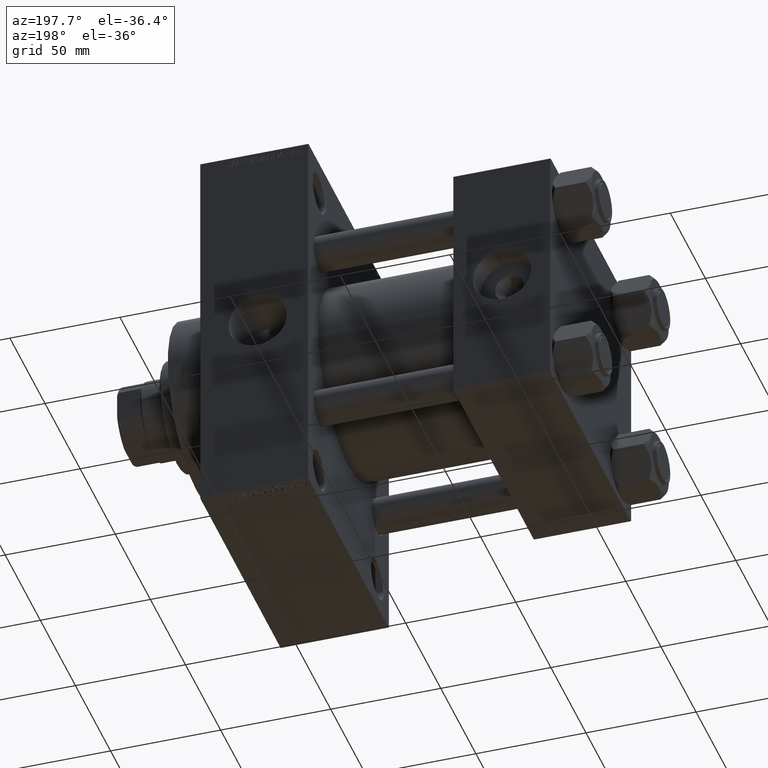
[diagram: clean part render]
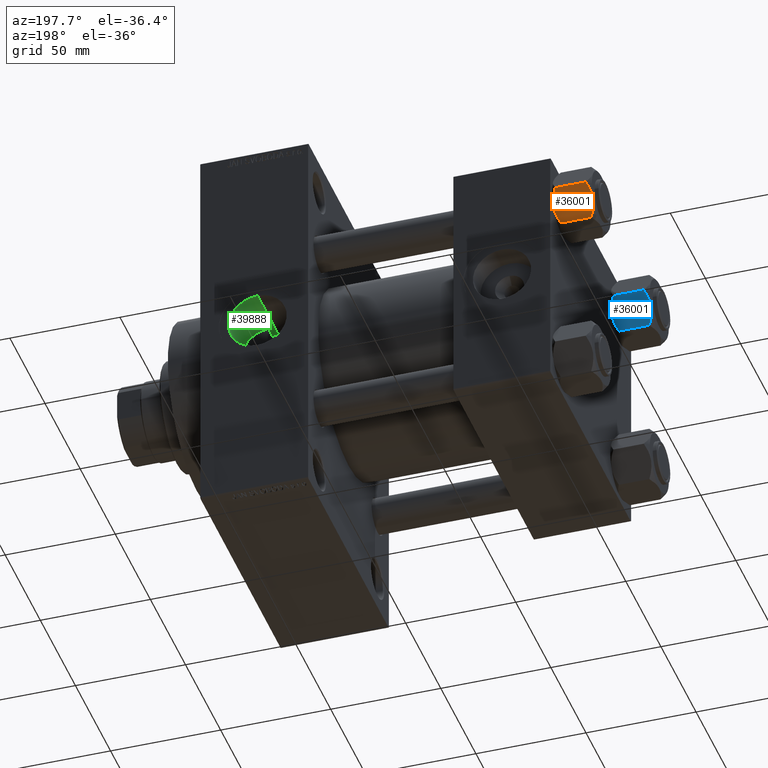
[diagram: same view with three faces highlighted in distinct colors, each labeled with its STEP entity id]
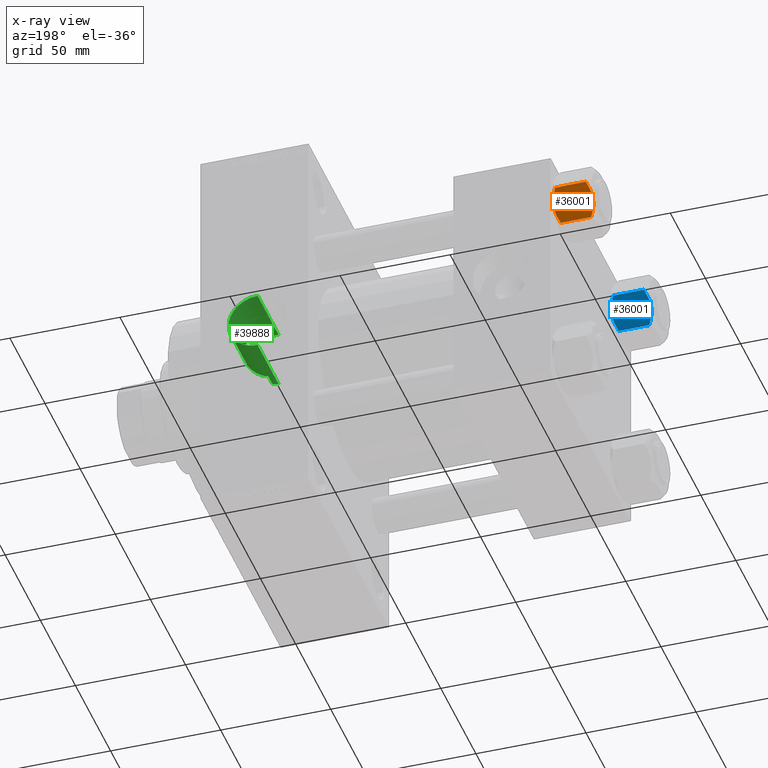
[diagram: x-ray of the same camera — body ghosted, the three highlighted faces saturated]
A machine part, auxiliary view with three faces highlighted in distinct colors.
The next image is the same camera in x-ray (body ghosted, the three faces saturated) — at least one of them is partly hidden behind the body in this view.
Their STEP definitions:

[orange] entity #36001 — the highlighted planar face has unit normal (-0, -0.866, 0.5).
#129 = ORIENTED_EDGE ( 'NONE', *, *, #29640, .F. ) ;
#245 = LINE ( 'NONE', #7324, #10017 ) ;
#318 = CARTESIAN_POINT ( 'NONE',  ( 8.506059550806622127, 12.32170630002230283, -1.434462921875002683 ) ) ;
#373 = ORIENTED_EDGE ( 'NONE', *, *, #44246, .F. ) ;
#957 = CARTESIAN_POINT ( 'NONE',  ( 12.04818928091285812, 6.186557640478062225, 2.165016213181991667E-15 ) ) ;
#2048 = DIRECTION ( 'NONE',  ( -0.4999999999999999445, 0.8660254037844387076, 0.000000000000000000 ) ) ;
#2084 = CARTESIAN_POINT ( 'NONE',  ( 11.71500000000000519, 6.763658403556469523, 0.000000000000000000 ) ) ;
#3810 = CARTESIAN_POINT ( 'NONE',  ( 12.37702203890362895, 5.617002596445055396, -18.00000000000001066 ) ) ;
#3815 = B_SPLINE_CURVE_WITH_KNOTS ( 'NONE', 3,
 ( #41325, #3810, #26470, #10870, #41818, #34039, #41574, #34529 ),
 .UNSPECIFIED., .F., .F.,
 ( 4, 2, 2, 4 ),
 ( 0.007890825462474420487, 0.01181022244528553804, 0.01376992093669109421, 0.01572961942809665212 ),
 .UNSPECIFIED. ) ;
#4880 = VECTOR ( 'NONE', #22887, 1000.000000000000000 ) ;
#4985 = CARTESIAN_POINT ( 'NONE',  ( 15.52647173767732980, 0.1619957022865022300, -2.000000000000000000 ) ) ;
#5204 = VERTEX_POINT ( 'NONE', #6799 ) ;
#5675 = VECTOR ( 'NONE', #25960, 1000.000000000000000 ) ;
#6034 = VERTEX_POINT ( 'NONE', #12920 ) ;
#6207 = B_SPLINE_CURVE_WITH_KNOTS ( 'NONE', 3,
 ( #12887, #43584, #9101, #24466, #34827, #318, #15686, #46380 ),
 .UNSPECIFIED., .F., .F.,
 ( 4, 2, 2, 4 ),
 ( 0.007890825462474437835, 0.01181022244528555538, 0.01376992093669111156, 0.01572961942809666946 ),
 .UNSPECIFIED. ) ;
#6799 = CARTESIAN_POINT ( 'NONE',  ( 15.52647173767732980, 0.1619957022865022300, -2.000000000000000000 ) ) ;
#6920 = FACE_OUTER_BOUND ( 'NONE', #43272, .T. ) ;
#7092 = VERTEX_POINT ( 'NONE', #39547 ) ;
#7172 = DIRECTION ( 'NONE',  ( 0.4999999999999998890, -0.8660254037844385966, 0.000000000000000000 ) ) ;
#7324 = CARTESIAN_POINT ( 'NONE',  ( 7.810000000000001386, 13.52731680711293905, -1.999999999999998224 ) ) ;
#9004 = CARTESIAN_POINT ( 'NONE',  ( 12.38621571200405924, 5.601078687526928945, -0.05089381635301384876 ) ) ;
#9101 = CARTESIAN_POINT ( 'NONE',  ( 10.40215497533437450, 9.037572688741345672, -0.1971866459924547788 ) ) ;
#10017 = VECTOR ( 'NONE', #23418, 999.9999999999998863 ) ;
#10870 = CARTESIAN_POINT ( 'NONE',  ( 13.99051971937273997, 2.822342635978008385, -17.26828031537188934 ) ) ;
#11897 = CARTESIAN_POINT ( 'NONE',  ( 7.903528262322677023, 13.36532110482643176, -16.00000000000000000 ) ) ;
#12123 = CARTESIAN_POINT ( 'NONE',  ( 15.52647173767732980, 0.1619957022865022300, -16.00000000000000000 ) ) ;
#12135 = CARTESIAN_POINT ( 'NONE',  ( 10.38662926516872353, 9.064464007571851667, -17.75691532989870680 ) ) ;
#12887 = CARTESIAN_POINT ( 'NONE',  ( 11.71500000000000519, 6.763658403556469523, 0.000000000000000000 ) ) ;
#12920 = CARTESIAN_POINT ( 'NONE',  ( 7.810000000000000497, 13.52731680711293905, -16.00000000000000000 ) ) ;
#13666 = VERTEX_POINT ( 'NONE', #22938 ) ;
#13687 = ORIENTED_EDGE ( 'NONE', *, *, #21580, .F. ) ;
#14395 = B_SPLINE_CURVE_WITH_KNOTS ( 'NONE', 3,
 ( #11897, #27249, #42590, #31273, #12135, #27499, #42841, #48592 ),
 .UNSPECIFIED., .F., .F.,
 ( 4, 2, 2, 4 ),
 ( 4.472842641813524820E-07, 0.003945636373369301383, 0.005918230917921860935, 0.007890825462474420487 ),
 .UNSPECIFIED. ) ;
#14599 = LINE ( 'NONE', #45281, #4880 ) ;
#15571 = VERTEX_POINT ( 'NONE', #24885 ) ;
#15686 = CARTESIAN_POINT ( 'NONE',  ( 8.202637790192646605, 12.84724820552771085, -1.706311779141445717 ) ) ;
#16153 = EDGE_CURVE ( 'NONE', #6034, #13666, #41316, .T. ) ;
#16745 = ORIENTED_EDGE ( 'NONE', *, *, #20730, .F. ) ;
#17727 = ORIENTED_EDGE ( 'NONE', *, *, #16153, .T. ) ;
#19071 = ORIENTED_EDGE ( 'NONE', *, *, #32277, .F. ) ;
#19848 = CARTESIAN_POINT ( 'NONE',  ( 14.92760668674625002, 1.199260397376449072, -1.411989271640066601 ) ) ;
#20730 = EDGE_CURVE ( 'NONE', #32870, #29148, #14599, .T. ) ;
#21580 = EDGE_CURVE ( 'NONE', #5204, #26897, #30432, .T. ) ;
#22887 = DIRECTION ( 'NONE',  ( -0.000000000000000000, -0.000000000000000000, 1.000000000000000000 ) ) ;
#22938 = CARTESIAN_POINT ( 'NONE',  ( 7.810000000000000497, 13.52731680711293905, -1.999999999999998224 ) ) ;
#23418 = DIRECTION ( 'NONE',  ( -0.4999999999999999445, 0.8660254037844387076, 0.000000000000000000 ) ) ;
#24368 = CARTESIAN_POINT ( 'NONE',  ( 11.71500000000000519, 6.763658403556469523, 0.000000000000000000 ) ) ;
#24466 = CARTESIAN_POINT ( 'NONE',  ( 9.439480280627263298, 10.70497417113492489, -0.7317196846281137645 ) ) ;
#24598 = AXIS2_PLACEMENT_3D ( 'NONE', #33617, #38387, #7172 ) ;
#24885 = CARTESIAN_POINT ( 'NONE',  ( 7.903528262322677023, 13.36532110482643176, -16.00000000000000000 ) ) ;
#25417 = LINE ( 'NONE', #41764, #37393 ) ;
#25919 = DIRECTION ( 'NONE',  ( 0.4999999999999999445, -0.8660254037844387076, 0.000000000000000000 ) ) ;
#25960 = DIRECTION ( 'NONE',  ( -0.000000000000000000, -0.000000000000000000, 1.000000000000000000 ) ) ;
#26470 = CARTESIAN_POINT ( 'NONE',  ( 13.02784502466562699, 4.489744118371587156, -17.80281335400755083 ) ) ;
#26897 = VERTEX_POINT ( 'NONE', #2084 ) ;
#27249 = CARTESIAN_POINT ( 'NONE',  ( 8.502393313253755025, 12.32805640973648309, -16.58801072835992585 ) ) ;
#27261 = LINE ( 'NONE', #42600, #35106 ) ;
#27499 = CARTESIAN_POINT ( 'NONE',  ( 11.04378428799595468, 7.926238119586002995, -17.94910618364699317 ) ) ;
#28351 = CARTESIAN_POINT ( 'NONE',  ( 7.903528262322677023, 13.36532110482643176, -2.000000000000000000 ) ) ;
#29148 = VERTEX_POINT ( 'NONE', #38127 ) ;
#29640 = EDGE_CURVE ( 'NONE', #6034, #15571, #25417, .T. ) ;
#30424 = EDGE_CURVE ( 'NONE', #47192, #32870, #41532, .T. ) ;
#30432 = B_SPLINE_CURVE_WITH_KNOTS ( 'NONE', 3,
 ( #4985, #19848, #43238, #43488, #35960, #9004, #957, #24368 ),
 .UNSPECIFIED., .F., .F.,
 ( 4, 2, 2, 4 ),
 ( 4.472842641970240738E-07, 0.003945636373369317863, 0.005918230917921878283, 0.007890825462474437835 ),
 .UNSPECIFIED. ) ;
#30457 = DIRECTION ( 'NONE',  ( 0.4999999999999999445, -0.8660254037844387076, 0.000000000000000000 ) ) ;
#31273 = CARTESIAN_POINT ( 'NONE',  ( 10.06459418565412278, 9.622245127110613083, -17.61639331488794014 ) ) ;
#32277 = EDGE_CURVE ( 'NONE', #29148, #5204, #245, .T. ) ;
#32870 = VERTEX_POINT ( 'NONE', #38364 ) ;
#33617 = CARTESIAN_POINT ( 'NONE',  ( 7.810000000000001386, 13.52731680711293905, -18.00000000000000000 ) ) ;
#34039 = CARTESIAN_POINT ( 'NONE',  ( 14.92394044919338114, 1.205610507090631334, -16.56553707812499354 ) ) ;
#34529 = CARTESIAN_POINT ( 'NONE',  ( 15.52647173767732980, 0.1619957022865022300, -16.00000000000000000 ) ) ;
#34827 = CARTESIAN_POINT ( 'NONE',  ( 9.124083218049239719, 11.25125790807803483, -0.9473872146228128344 ) ) ;
#35106 = VECTOR ( 'NONE', #2048, 999.9999999999998863 ) ;
#35353 = ORIENTED_EDGE ( 'NONE', *, *, #44253, .F. ) ;
#35960 = CARTESIAN_POINT ( 'NONE',  ( 13.04337073483128506, 4.462852799541082938, -0.2430846701012968347 ) ) ;
#36001 = ADVANCED_FACE ( 'NONE', ( #6920 ), #41407, .F. ) ;
#36091 = ORIENTED_EDGE ( 'NONE', *, *, #38092, .F. ) ;
#37393 = VECTOR ( 'NONE', #25919, 999.9999999999998863 ) ;
#38092 = EDGE_CURVE ( 'NONE', #15571, #7092, #14395, .T. ) ;
#38127 = CARTESIAN_POINT ( 'NONE',  ( 15.62000000000000455, -1.379485931020374819E-15, -1.999999999999998224 ) ) ;
#38364 = CARTESIAN_POINT ( 'NONE',  ( 15.62000000000000455, -1.379485931020374819E-15, -16.00000000000000000 ) ) ;
#38387 = DIRECTION ( 'NONE',  ( -0.8660254037844387076, -0.4999999999999999445, 0.000000000000000000 ) ) ;
#38636 = ORIENTED_EDGE ( 'NONE', *, *, #44374, .F. ) ;
#39547 = CARTESIAN_POINT ( 'NONE',  ( 11.71500000000000519, 6.763658403556469523, -18.00000000000000000 ) ) ;
#41316 = LINE ( 'NONE', #48595, #5675 ) ;
#41325 = CARTESIAN_POINT ( 'NONE',  ( 11.71500000000000519, 6.763658403556469523, -18.00000000000000000 ) ) ;
#41407 = PLANE ( 'NONE',  #24598 ) ;
#41532 = LINE ( 'NONE', #49576, #42999 ) ;
#41574 = CARTESIAN_POINT ( 'NONE',  ( 15.22736220980735844, 0.6800686015852226429, -16.29368822085855228 ) ) ;
#41764 = CARTESIAN_POINT ( 'NONE',  ( 7.810000000000001386, 13.52731680711293905, -16.00000000000000000 ) ) ;
#41818 = CARTESIAN_POINT ( 'NONE',  ( 14.30591678195076355, 2.276058899034896221, -17.05261278537718184 ) ) ;
#42590 = CARTESIAN_POINT ( 'NONE',  ( 9.114548888011785976, 11.26777185211903998, -17.08577173959729478 ) ) ;
#42600 = CARTESIAN_POINT ( 'NONE',  ( 7.810000000000001386, 13.52731680711293905, -1.999999999999998224 ) ) ;
#42841 = CARTESIAN_POINT ( 'NONE',  ( 11.38181071908714870, 7.340759166634869715, -18.00000000000000355 ) ) ;
#42999 = VECTOR ( 'NONE', #30457, 999.9999999999998863 ) ;
#43039 = ORIENTED_EDGE ( 'NONE', *, *, #30424, .F. ) ;
#43238 = CARTESIAN_POINT ( 'NONE',  ( 14.31545111198821552, 2.259544954993893295, -0.9142282604026940040 ) ) ;
#43272 = EDGE_LOOP ( 'NONE', ( #129, #17727, #35353, #373, #13687, #19071, #16745, #43039, #38636, #36091 ) ) ;
#43488 = CARTESIAN_POINT ( 'NONE',  ( 13.36540581434588049, 3.905071680002324630, -0.3836066851120584764 ) ) ;
#43584 = CARTESIAN_POINT ( 'NONE',  ( 11.05297796109638320, 7.910314210667883650, 2.165016213181991667E-15 ) ) ;
#44246 = EDGE_CURVE ( 'NONE', #26897, #49070, #6207, .T. ) ;
#44253 = EDGE_CURVE ( 'NONE', #49070, #13666, #27261, .T. ) ;
#44374 = EDGE_CURVE ( 'NONE', #7092, #47192, #3815, .T. ) ;
#45281 = CARTESIAN_POINT ( 'NONE',  ( 15.62000000000000455, -1.379485931020374819E-15, -18.00000000000000000 ) ) ;
#46380 = CARTESIAN_POINT ( 'NONE',  ( 7.903528262322677023, 13.36532110482643176, -2.000000000000000000 ) ) ;
#47192 = VERTEX_POINT ( 'NONE', #12123 ) ;
#48592 = CARTESIAN_POINT ( 'NONE',  ( 11.71500000000000519, 6.763658403556469523, -18.00000000000000000 ) ) ;
#48595 = CARTESIAN_POINT ( 'NONE',  ( 7.810000000000001386, 13.52731680711293905, -18.00000000000000000 ) ) ;
#49070 = VERTEX_POINT ( 'NONE', #28351 ) ;
#49576 = CARTESIAN_POINT ( 'NONE',  ( 7.810000000000001386, 13.52731680711293905, -16.00000000000000000 ) ) ;

[blue] entity #36001 — the highlighted planar face has unit normal (-0, -0.866, 0.5).
#129 = ORIENTED_EDGE ( 'NONE', *, *, #29640, .F. ) ;
#245 = LINE ( 'NONE', #7324, #10017 ) ;
#318 = CARTESIAN_POINT ( 'NONE',  ( 8.506059550806622127, 12.32170630002230283, -1.434462921875002683 ) ) ;
#373 = ORIENTED_EDGE ( 'NONE', *, *, #44246, .F. ) ;
#957 = CARTESIAN_POINT ( 'NONE',  ( 12.04818928091285812, 6.186557640478062225, 2.165016213181991667E-15 ) ) ;
#2048 = DIRECTION ( 'NONE',  ( -0.4999999999999999445, 0.8660254037844387076, 0.000000000000000000 ) ) ;
#2084 = CARTESIAN_POINT ( 'NONE',  ( 11.71500000000000519, 6.763658403556469523, 0.000000000000000000 ) ) ;
#3810 = CARTESIAN_POINT ( 'NONE',  ( 12.37702203890362895, 5.617002596445055396, -18.00000000000001066 ) ) ;
#3815 = B_SPLINE_CURVE_WITH_KNOTS ( 'NONE', 3,
 ( #41325, #3810, #26470, #10870, #41818, #34039, #41574, #34529 ),
 .UNSPECIFIED., .F., .F.,
 ( 4, 2, 2, 4 ),
 ( 0.007890825462474420487, 0.01181022244528553804, 0.01376992093669109421, 0.01572961942809665212 ),
 .UNSPECIFIED. ) ;
#4880 = VECTOR ( 'NONE', #22887, 1000.000000000000000 ) ;
#4985 = CARTESIAN_POINT ( 'NONE',  ( 15.52647173767732980, 0.1619957022865022300, -2.000000000000000000 ) ) ;
#5204 = VERTEX_POINT ( 'NONE', #6799 ) ;
#5675 = VECTOR ( 'NONE', #25960, 1000.000000000000000 ) ;
#6034 = VERTEX_POINT ( 'NONE', #12920 ) ;
#6207 = B_SPLINE_CURVE_WITH_KNOTS ( 'NONE', 3,
 ( #12887, #43584, #9101, #24466, #34827, #318, #15686, #46380 ),
 .UNSPECIFIED., .F., .F.,
 ( 4, 2, 2, 4 ),
 ( 0.007890825462474437835, 0.01181022244528555538, 0.01376992093669111156, 0.01572961942809666946 ),
 .UNSPECIFIED. ) ;
#6799 = CARTESIAN_POINT ( 'NONE',  ( 15.52647173767732980, 0.1619957022865022300, -2.000000000000000000 ) ) ;
#6920 = FACE_OUTER_BOUND ( 'NONE', #43272, .T. ) ;
#7092 = VERTEX_POINT ( 'NONE', #39547 ) ;
#7172 = DIRECTION ( 'NONE',  ( 0.4999999999999998890, -0.8660254037844385966, 0.000000000000000000 ) ) ;
#7324 = CARTESIAN_POINT ( 'NONE',  ( 7.810000000000001386, 13.52731680711293905, -1.999999999999998224 ) ) ;
#9004 = CARTESIAN_POINT ( 'NONE',  ( 12.38621571200405924, 5.601078687526928945, -0.05089381635301384876 ) ) ;
#9101 = CARTESIAN_POINT ( 'NONE',  ( 10.40215497533437450, 9.037572688741345672, -0.1971866459924547788 ) ) ;
#10017 = VECTOR ( 'NONE', #23418, 999.9999999999998863 ) ;
#10870 = CARTESIAN_POINT ( 'NONE',  ( 13.99051971937273997, 2.822342635978008385, -17.26828031537188934 ) ) ;
#11897 = CARTESIAN_POINT ( 'NONE',  ( 7.903528262322677023, 13.36532110482643176, -16.00000000000000000 ) ) ;
#12123 = CARTESIAN_POINT ( 'NONE',  ( 15.52647173767732980, 0.1619957022865022300, -16.00000000000000000 ) ) ;
#12135 = CARTESIAN_POINT ( 'NONE',  ( 10.38662926516872353, 9.064464007571851667, -17.75691532989870680 ) ) ;
#12887 = CARTESIAN_POINT ( 'NONE',  ( 11.71500000000000519, 6.763658403556469523, 0.000000000000000000 ) ) ;
#12920 = CARTESIAN_POINT ( 'NONE',  ( 7.810000000000000497, 13.52731680711293905, -16.00000000000000000 ) ) ;
#13666 = VERTEX_POINT ( 'NONE', #22938 ) ;
#13687 = ORIENTED_EDGE ( 'NONE', *, *, #21580, .F. ) ;
#14395 = B_SPLINE_CURVE_WITH_KNOTS ( 'NONE', 3,
 ( #11897, #27249, #42590, #31273, #12135, #27499, #42841, #48592 ),
 .UNSPECIFIED., .F., .F.,
 ( 4, 2, 2, 4 ),
 ( 4.472842641813524820E-07, 0.003945636373369301383, 0.005918230917921860935, 0.007890825462474420487 ),
 .UNSPECIFIED. ) ;
#14599 = LINE ( 'NONE', #45281, #4880 ) ;
#15571 = VERTEX_POINT ( 'NONE', #24885 ) ;
#15686 = CARTESIAN_POINT ( 'NONE',  ( 8.202637790192646605, 12.84724820552771085, -1.706311779141445717 ) ) ;
#16153 = EDGE_CURVE ( 'NONE', #6034, #13666, #41316, .T. ) ;
#16745 = ORIENTED_EDGE ( 'NONE', *, *, #20730, .F. ) ;
#17727 = ORIENTED_EDGE ( 'NONE', *, *, #16153, .T. ) ;
#19071 = ORIENTED_EDGE ( 'NONE', *, *, #32277, .F. ) ;
#19848 = CARTESIAN_POINT ( 'NONE',  ( 14.92760668674625002, 1.199260397376449072, -1.411989271640066601 ) ) ;
#20730 = EDGE_CURVE ( 'NONE', #32870, #29148, #14599, .T. ) ;
#21580 = EDGE_CURVE ( 'NONE', #5204, #26897, #30432, .T. ) ;
#22887 = DIRECTION ( 'NONE',  ( -0.000000000000000000, -0.000000000000000000, 1.000000000000000000 ) ) ;
#22938 = CARTESIAN_POINT ( 'NONE',  ( 7.810000000000000497, 13.52731680711293905, -1.999999999999998224 ) ) ;
#23418 = DIRECTION ( 'NONE',  ( -0.4999999999999999445, 0.8660254037844387076, 0.000000000000000000 ) ) ;
#24368 = CARTESIAN_POINT ( 'NONE',  ( 11.71500000000000519, 6.763658403556469523, 0.000000000000000000 ) ) ;
#24466 = CARTESIAN_POINT ( 'NONE',  ( 9.439480280627263298, 10.70497417113492489, -0.7317196846281137645 ) ) ;
#24598 = AXIS2_PLACEMENT_3D ( 'NONE', #33617, #38387, #7172 ) ;
#24885 = CARTESIAN_POINT ( 'NONE',  ( 7.903528262322677023, 13.36532110482643176, -16.00000000000000000 ) ) ;
#25417 = LINE ( 'NONE', #41764, #37393 ) ;
#25919 = DIRECTION ( 'NONE',  ( 0.4999999999999999445, -0.8660254037844387076, 0.000000000000000000 ) ) ;
#25960 = DIRECTION ( 'NONE',  ( -0.000000000000000000, -0.000000000000000000, 1.000000000000000000 ) ) ;
#26470 = CARTESIAN_POINT ( 'NONE',  ( 13.02784502466562699, 4.489744118371587156, -17.80281335400755083 ) ) ;
#26897 = VERTEX_POINT ( 'NONE', #2084 ) ;
#27249 = CARTESIAN_POINT ( 'NONE',  ( 8.502393313253755025, 12.32805640973648309, -16.58801072835992585 ) ) ;
#27261 = LINE ( 'NONE', #42600, #35106 ) ;
#27499 = CARTESIAN_POINT ( 'NONE',  ( 11.04378428799595468, 7.926238119586002995, -17.94910618364699317 ) ) ;
#28351 = CARTESIAN_POINT ( 'NONE',  ( 7.903528262322677023, 13.36532110482643176, -2.000000000000000000 ) ) ;
#29148 = VERTEX_POINT ( 'NONE', #38127 ) ;
#29640 = EDGE_CURVE ( 'NONE', #6034, #15571, #25417, .T. ) ;
#30424 = EDGE_CURVE ( 'NONE', #47192, #32870, #41532, .T. ) ;
#30432 = B_SPLINE_CURVE_WITH_KNOTS ( 'NONE', 3,
 ( #4985, #19848, #43238, #43488, #35960, #9004, #957, #24368 ),
 .UNSPECIFIED., .F., .F.,
 ( 4, 2, 2, 4 ),
 ( 4.472842641970240738E-07, 0.003945636373369317863, 0.005918230917921878283, 0.007890825462474437835 ),
 .UNSPECIFIED. ) ;
#30457 = DIRECTION ( 'NONE',  ( 0.4999999999999999445, -0.8660254037844387076, 0.000000000000000000 ) ) ;
#31273 = CARTESIAN_POINT ( 'NONE',  ( 10.06459418565412278, 9.622245127110613083, -17.61639331488794014 ) ) ;
#32277 = EDGE_CURVE ( 'NONE', #29148, #5204, #245, .T. ) ;
#32870 = VERTEX_POINT ( 'NONE', #38364 ) ;
#33617 = CARTESIAN_POINT ( 'NONE',  ( 7.810000000000001386, 13.52731680711293905, -18.00000000000000000 ) ) ;
#34039 = CARTESIAN_POINT ( 'NONE',  ( 14.92394044919338114, 1.205610507090631334, -16.56553707812499354 ) ) ;
#34529 = CARTESIAN_POINT ( 'NONE',  ( 15.52647173767732980, 0.1619957022865022300, -16.00000000000000000 ) ) ;
#34827 = CARTESIAN_POINT ( 'NONE',  ( 9.124083218049239719, 11.25125790807803483, -0.9473872146228128344 ) ) ;
#35106 = VECTOR ( 'NONE', #2048, 999.9999999999998863 ) ;
#35353 = ORIENTED_EDGE ( 'NONE', *, *, #44253, .F. ) ;
#35960 = CARTESIAN_POINT ( 'NONE',  ( 13.04337073483128506, 4.462852799541082938, -0.2430846701012968347 ) ) ;
#36001 = ADVANCED_FACE ( 'NONE', ( #6920 ), #41407, .F. ) ;
#36091 = ORIENTED_EDGE ( 'NONE', *, *, #38092, .F. ) ;
#37393 = VECTOR ( 'NONE', #25919, 999.9999999999998863 ) ;
#38092 = EDGE_CURVE ( 'NONE', #15571, #7092, #14395, .T. ) ;
#38127 = CARTESIAN_POINT ( 'NONE',  ( 15.62000000000000455, -1.379485931020374819E-15, -1.999999999999998224 ) ) ;
#38364 = CARTESIAN_POINT ( 'NONE',  ( 15.62000000000000455, -1.379485931020374819E-15, -16.00000000000000000 ) ) ;
#38387 = DIRECTION ( 'NONE',  ( -0.8660254037844387076, -0.4999999999999999445, 0.000000000000000000 ) ) ;
#38636 = ORIENTED_EDGE ( 'NONE', *, *, #44374, .F. ) ;
#39547 = CARTESIAN_POINT ( 'NONE',  ( 11.71500000000000519, 6.763658403556469523, -18.00000000000000000 ) ) ;
#41316 = LINE ( 'NONE', #48595, #5675 ) ;
#41325 = CARTESIAN_POINT ( 'NONE',  ( 11.71500000000000519, 6.763658403556469523, -18.00000000000000000 ) ) ;
#41407 = PLANE ( 'NONE',  #24598 ) ;
#41532 = LINE ( 'NONE', #49576, #42999 ) ;
#41574 = CARTESIAN_POINT ( 'NONE',  ( 15.22736220980735844, 0.6800686015852226429, -16.29368822085855228 ) ) ;
#41764 = CARTESIAN_POINT ( 'NONE',  ( 7.810000000000001386, 13.52731680711293905, -16.00000000000000000 ) ) ;
#41818 = CARTESIAN_POINT ( 'NONE',  ( 14.30591678195076355, 2.276058899034896221, -17.05261278537718184 ) ) ;
#42590 = CARTESIAN_POINT ( 'NONE',  ( 9.114548888011785976, 11.26777185211903998, -17.08577173959729478 ) ) ;
#42600 = CARTESIAN_POINT ( 'NONE',  ( 7.810000000000001386, 13.52731680711293905, -1.999999999999998224 ) ) ;
#42841 = CARTESIAN_POINT ( 'NONE',  ( 11.38181071908714870, 7.340759166634869715, -18.00000000000000355 ) ) ;
#42999 = VECTOR ( 'NONE', #30457, 999.9999999999998863 ) ;
#43039 = ORIENTED_EDGE ( 'NONE', *, *, #30424, .F. ) ;
#43238 = CARTESIAN_POINT ( 'NONE',  ( 14.31545111198821552, 2.259544954993893295, -0.9142282604026940040 ) ) ;
#43272 = EDGE_LOOP ( 'NONE', ( #129, #17727, #35353, #373, #13687, #19071, #16745, #43039, #38636, #36091 ) ) ;
#43488 = CARTESIAN_POINT ( 'NONE',  ( 13.36540581434588049, 3.905071680002324630, -0.3836066851120584764 ) ) ;
#43584 = CARTESIAN_POINT ( 'NONE',  ( 11.05297796109638320, 7.910314210667883650, 2.165016213181991667E-15 ) ) ;
#44246 = EDGE_CURVE ( 'NONE', #26897, #49070, #6207, .T. ) ;
#44253 = EDGE_CURVE ( 'NONE', #49070, #13666, #27261, .T. ) ;
#44374 = EDGE_CURVE ( 'NONE', #7092, #47192, #3815, .T. ) ;
#45281 = CARTESIAN_POINT ( 'NONE',  ( 15.62000000000000455, -1.379485931020374819E-15, -18.00000000000000000 ) ) ;
#46380 = CARTESIAN_POINT ( 'NONE',  ( 7.903528262322677023, 13.36532110482643176, -2.000000000000000000 ) ) ;
#47192 = VERTEX_POINT ( 'NONE', #12123 ) ;
#48592 = CARTESIAN_POINT ( 'NONE',  ( 11.71500000000000519, 6.763658403556469523, -18.00000000000000000 ) ) ;
#48595 = CARTESIAN_POINT ( 'NONE',  ( 7.810000000000001386, 13.52731680711293905, -18.00000000000000000 ) ) ;
#49070 = VERTEX_POINT ( 'NONE', #28351 ) ;
#49576 = CARTESIAN_POINT ( 'NONE',  ( 7.810000000000001386, 13.52731680711293905, -16.00000000000000000 ) ) ;

[green] entity #39888 — the highlighted cylindrical surface (edge-blend (fillet) strip) has radius 13.22 mm, axis along (0, 1, 0).
#632 = CARTESIAN_POINT ( 'NONE',  ( 133.0000000000000000, 27.48602554026317435, 13.22000000000001485 ) ) ;
#642 = CARTESIAN_POINT ( 'NONE',  ( 135.7400000000000091, -37.39180658914467159, -12.93293470176047677 ) ) ;
#1686 = CARTESIAN_POINT ( 'NONE',  ( 135.7400000000000091, 33.59671412504502541, -12.93293470176047677 ) ) ;
#2097 = CARTESIAN_POINT ( 'NONE',  ( 133.0000000000000000, 57.29999999999996874, 2.216591108192586142E-15 ) ) ;
#2333 = ORIENTED_EDGE ( 'NONE', *, *, #9264, .T. ) ;
#2605 = VERTEX_POINT ( 'NONE', #48073 ) ;
#3289 = CARTESIAN_POINT ( 'NONE',  ( 134.8330702609090110, 27.53229591609543903, -13.12507883164392197 ) ) ;
#3403 = CARTESIAN_POINT ( 'NONE',  ( 144.1473667493317805, 35.28988197082103540, 7.145511571797288575 ) ) ;
#3622 = B_SPLINE_CURVE_WITH_KNOTS ( 'NONE', 3,
 ( #30097, #45430, #10963, #10463, #26563, #6934, #41914, #38151, #22302, #7431, #22791, #3654, #3403, #26315, #41667, #18000, #41169, #7675, #45184, #6683, #19011, #22045, #33632, #29847, #34384, #14496, #45931, #15237, #14245, #49708, #7185, #22543, #49461, #10711, #11456, #26808, #42158, #14998, #37154, #33376, #42885, #34620, #27544, #42396, #34862, #7918, #12184, #35599 ),
 .UNSPECIFIED., .F., .F.,
 ( 4, 2, 2, 2, 2, 2, 2, 2, 2, 2, 2, 2, 2, 2, 2, 2, 2, 2, 2, 2, 2, 2, 2, 4 ),
 ( 0.000000000000000000, 0.002261541487190001608, 0.004523082974380003216, 0.006784624461570005691, 0.007915395205165010398, 0.009046165948760015105, 0.01130770743595007656, 0.01243847817954510555, 0.01356924892314013455, 0.01583079041033019427, 0.01696156115392522326, 0.01809233189752025225, 0.02035387338471031024, 0.02148464412830534617, 0.02261541487190038210, 0.02487695635909042968, 0.02600772710268545521, 0.02713849784628048073, 0.02940003933347052831, 0.03053081007706552261, 0.03166158082066051344, 0.03392312230785050203, 0.03505389305144545470, 0.03618466379504041430 ),
 .UNSPECIFIED. ) ;
#3654 = CARTESIAN_POINT ( 'NONE',  ( 143.7286871753288722, 35.15866088695766223, 7.760569906701274334 ) ) ;
#4416 = VECTOR ( 'NONE', #33990, 1000.000000000000000 ) ;
#4660 = CARTESIAN_POINT ( 'NONE',  ( 133.0000000000000000, 27.48602554026317435, 13.22000000000001485 ) ) ;
#5455 = CARTESIAN_POINT ( 'NONE',  ( 135.7399999999999523, 27.62225914004861949, -12.93293470176048743 ) ) ;
#6093 = AXIS2_PLACEMENT_3D ( 'NONE', #41817, #25716, #22449 ) ;
#6206 = VERTEX_POINT ( 'NONE', #34484 ) ;
#6683 = CARTESIAN_POINT ( 'NONE',  ( 146.0882787205803197, 35.95178749193544121, 1.899113185740345822 ) ) ;
#6934 = CARTESIAN_POINT ( 'NONE',  ( 140.5474911551487480, 34.31910339503980367, 10.87982629903011578 ) ) ;
#7088 = CYLINDRICAL_SURFACE ( 'NONE', #6093, 13.22000000000001307 ) ;
#7185 = CARTESIAN_POINT ( 'NONE',  ( 144.8859945304910184, 35.53010638142644240, -5.835162689468439190 ) ) ;
#7431 = CARTESIAN_POINT ( 'NONE',  ( 142.7693593199377062, 34.87993829756943853, 8.914406653687468207 ) ) ;
#7675 = CARTESIAN_POINT ( 'NONE',  ( 145.7033546496753900, 35.81270017918523507, 3.737456918487965574 ) ) ;
#7918 = CARTESIAN_POINT ( 'NONE',  ( 136.4830526523834351, 33.66353356555785581, -12.75854119602011849 ) ) ;
#8228 = CARTESIAN_POINT ( 'NONE',  ( 133.0000000000000000, -37.39180658914467159, 13.22000000000001485 ) ) ;
#8862 = ORIENTED_EDGE ( 'NONE', *, *, #29604, .F. ) ;
#9264 = EDGE_CURVE ( 'NONE', #33471, #35659, #35151, .T. ) ;
#10463 = CARTESIAN_POINT ( 'NONE',  ( 138.5933060363426819, 33.94179174322903236, 12.00173046293031121 ) ) ;
#10711 = CARTESIAN_POINT ( 'NONE',  ( 143.7169491878082965, 35.15742135833136928, -7.749599987799653533 ) ) ;
#10963 = CARTESIAN_POINT ( 'NONE',  ( 137.2054463598958876, 33.74086444373506311, 12.55550984369234335 ) ) ;
#11456 = CARTESIAN_POINT ( 'NONE',  ( 143.4916658138077139, 35.08925744010397807, -8.051866093655576151 ) ) ;
#11655 = ORIENTED_EDGE ( 'NONE', *, *, #44889, .F. ) ;
#12184 = CARTESIAN_POINT ( 'NONE',  ( 136.1132085380460239, 33.62715136930764714, -12.85386591978424775 ) ) ;
#13548 = B_SPLINE_CURVE_WITH_KNOTS ( 'NONE', 3,
 ( #37296, #3289, #18654, #14888 ),
 .UNSPECIFIED., .F., .F.,
 ( 4, 4 ),
 ( 0.000000000000000000, 0.002754153663978152478 ),
 .UNSPECIFIED. ) ;
#14245 = CARTESIAN_POINT ( 'NONE',  ( 145.5781868588421162, 35.76909572614820831, -4.086623809376308536 ) ) ;
#14496 = CARTESIAN_POINT ( 'NONE',  ( 145.9629156845498130, 35.90633945151148509, -2.621651557121439158 ) ) ;
#14888 = CARTESIAN_POINT ( 'NONE',  ( 133.0000000000000000, 27.48602554026317790, -13.22000000000001130 ) ) ;
#14998 = CARTESIAN_POINT ( 'NONE',  ( 141.4323112275375536, 34.52915186654069402, -10.18835451941007619 ) ) ;
#15237 = CARTESIAN_POINT ( 'NONE',  ( 145.6909266299917363, 35.80898173995095846, -3.721805252510565154 ) ) ;
#15360 = VECTOR ( 'NONE', #36161, 1000.000000000000000 ) ;
#16491 = CARTESIAN_POINT ( 'NONE',  ( 135.7400000000000091, 27.62225914004862304, 12.93293470176048032 ) ) ;
#16766 = LINE ( 'NONE', #8228, #15360 ) ;
#17041 = ORIENTED_EDGE ( 'NONE', *, *, #24940, .T. ) ;
#17485 = EDGE_CURVE ( 'NONE', #43730, #6206, #16766, .T. ) ;
#17605 = CARTESIAN_POINT ( 'NONE',  ( 135.7400000000000091, -37.39180658914467159, 12.93293470176048032 ) ) ;
#18000 = CARTESIAN_POINT ( 'NONE',  ( 145.1774292073409072, 35.63004118577010360, 5.159373866595187152 ) ) ;
#18654 = CARTESIAN_POINT ( 'NONE',  ( 133.9197172709656627, 27.48602554026317435, -13.22000000000000952 ) ) ;
#18802 = EDGE_CURVE ( 'NONE', #6206, #25290, #44181, .T. ) ;
#18948 = CARTESIAN_POINT ( 'NONE',  ( 135.7400000000000091, 27.62225914004862304, 12.93293470176048032 ) ) ;
#19011 = CARTESIAN_POINT ( 'NONE',  ( 146.1371322321481045, 35.96963868881437776, 1.525551129375370740 ) ) ;
#19105 = EDGE_CURVE ( 'NONE', #33471, #2605, #13548, .T. ) ;
#22019 = DIRECTION ( 'NONE',  ( -0.000000000000000000, 1.000000000000000000, -0.000000000000000000 ) ) ;
#22045 = CARTESIAN_POINT ( 'NONE',  ( 146.2028789376522013, 35.99370328767532357, 0.7717106264536142124 ) ) ;
#22302 = CARTESIAN_POINT ( 'NONE',  ( 142.2521418842815422, 34.73862178565917702, 9.450126880761136050 ) ) ;
#22449 = DIRECTION ( 'NONE',  ( 0.000000000000000000, 0.000000000000000000, 1.000000000000000000 ) ) ;
#22543 = CARTESIAN_POINT ( 'NONE',  ( 144.3364747806119226, 35.35134026915534378, -6.811177353909287469 ) ) ;
#22791 = CARTESIAN_POINT ( 'NONE',  ( 143.0185801571961122, 34.95071279789108587, 8.633489739355315606 ) ) ;
#24670 = LINE ( 'NONE', #17605, #45238 ) ;
#24940 = EDGE_CURVE ( 'NONE', #30441, #47114, #24670, .T. ) ;
#25290 = VERTEX_POINT ( 'NONE', #28635 ) ;
#25683 = ORIENTED_EDGE ( 'NONE', *, *, #19105, .F. ) ;
#25716 = DIRECTION ( 'NONE',  ( -0.000000000000000000, 1.000000000000000000, -0.000000000000000000 ) ) ;
#26315 = CARTESIAN_POINT ( 'NONE',  ( 144.6959585139428839, 35.46825540645415487, 6.173441884947803437 ) ) ;
#26563 = CARTESIAN_POINT ( 'NONE',  ( 139.2634667834694255, 34.05975999988856273, 11.66637162473797495 ) ) ;
#26808 = CARTESIAN_POINT ( 'NONE',  ( 142.7854413968720166, 34.88242835481358384, -8.920220469445172995 ) ) ;
#27161 = B_SPLINE_CURVE_WITH_KNOTS ( 'NONE', 3,
 ( #4660, #39165, #31850, #16491 ),
 .UNSPECIFIED., .F., .F.,
 ( 4, 4 ),
 ( 0.04462176242505772744, 0.04737470670999824329 ),
 .UNSPECIFIED. ) ;
#27544 = CARTESIAN_POINT ( 'NONE',  ( 138.6051762912404399, 33.94373400491306114, -11.99626342902757337 ) ) ;
#28635 = CARTESIAN_POINT ( 'NONE',  ( 133.0000000000000000, 57.29999999999996874, -13.22000000000001130 ) ) ;
#28698 = DIRECTION ( 'NONE',  ( 0.000000000000000000, -1.000000000000000000, 0.000000000000000000 ) ) ;
#29039 = DIRECTION ( 'NONE',  ( 0.000000000000000000, 1.000000000000000000, 0.000000000000000000 ) ) ;
#29439 = LINE ( 'NONE', #41273, #4416 ) ;
#29604 = EDGE_CURVE ( 'NONE', #2605, #25290, #29439, .T. ) ;
#29847 = CARTESIAN_POINT ( 'NONE',  ( 146.2204654152534147, 36.00017091079578790, -0.7555805454783885988 ) ) ;
#30097 = CARTESIAN_POINT ( 'NONE',  ( 135.7400000000000091, 33.59671412504501831, 12.93293470176048032 ) ) ;
#30441 = VERTEX_POINT ( 'NONE', #40784 ) ;
#31850 = CARTESIAN_POINT ( 'NONE',  ( 134.8329127057289156, 27.53228028735227184, 13.12511221163103059 ) ) ;
#32397 = ORIENTED_EDGE ( 'NONE', *, *, #17485, .T. ) ;
#33376 = CARTESIAN_POINT ( 'NONE',  ( 140.5375552836966904, 34.32141923167823450, -10.86712601324282090 ) ) ;
#33466 = ORIENTED_EDGE ( 'NONE', *, *, #46978, .F. ) ;
#33471 = VERTEX_POINT ( 'NONE', #5455 ) ;
#33632 = CARTESIAN_POINT ( 'NONE',  ( 146.2197635704351910, 35.99991317782382794, 0.3899398427316232985 ) ) ;
#33990 = DIRECTION ( 'NONE',  ( -0.000000000000000000, 1.000000000000000000, -0.000000000000000000 ) ) ;
#34384 = CARTESIAN_POINT ( 'NONE',  ( 146.1552577846638030, 35.97607714065905782, -1.508294515622379262 ) ) ;
#34484 = CARTESIAN_POINT ( 'NONE',  ( 133.0000000000000000, 57.29999999999996874, 13.22000000000001485 ) ) ;
#34620 = CARTESIAN_POINT ( 'NONE',  ( 139.2703969792703447, 34.06113284969202937, -11.66224338757623080 ) ) ;
#34862 = CARTESIAN_POINT ( 'NONE',  ( 137.2082429394939993, 33.74627601644314012, -12.53805090881421691 ) ) ;
#35151 = LINE ( 'NONE', #642, #38883 ) ;
#35599 = CARTESIAN_POINT ( 'NONE',  ( 135.7400000000000091, 33.59671412504502541, -12.93293470176047677 ) ) ;
#35659 = VERTEX_POINT ( 'NONE', #1686 ) ;
#36161 = DIRECTION ( 'NONE',  ( -0.000000000000000000, 1.000000000000000000, -0.000000000000000000 ) ) ;
#37154 = CARTESIAN_POINT ( 'NONE',  ( 141.1417547516501543, 34.45915333924856583, -10.42213975181990726 ) ) ;
#37296 = CARTESIAN_POINT ( 'NONE',  ( 135.7399999999999523, 27.62225914004861949, -12.93293470176048743 ) ) ;
#37309 = FACE_OUTER_BOUND ( 'NONE', #46595, .T. ) ;
#37792 = AXIS2_PLACEMENT_3D ( 'NONE', #2097, #29039, #44373 ) ;
#38151 = CARTESIAN_POINT ( 'NONE',  ( 141.9832966455934127, 34.66782771197623703, 9.705989920600362808 ) ) ;
#38883 = VECTOR ( 'NONE', #22019, 1000.000000000000000 ) ;
#39165 = CARTESIAN_POINT ( 'NONE',  ( 133.9195580357263395, 27.48602554026317080, 13.22000000000001485 ) ) ;
#39888 = ADVANCED_FACE ( 'NONE', ( #37309 ), #7088, .F. ) ;
#40595 = ORIENTED_EDGE ( 'NONE', *, *, #18802, .T. ) ;
#40784 = CARTESIAN_POINT ( 'NONE',  ( 135.7400000000000091, 33.59671412504501831, 12.93293470176048032 ) ) ;
#41169 = CARTESIAN_POINT ( 'NONE',  ( 145.3202010958179926, 35.67919034582469351, 4.808835186596751576 ) ) ;
#41273 = CARTESIAN_POINT ( 'NONE',  ( 133.0000000000000000, -37.39180658914467159, -13.22000000000001130 ) ) ;
#41667 = CARTESIAN_POINT ( 'NONE',  ( 144.8655034412034013, 35.52464249944090824, 5.841125651952394193 ) ) ;
#41817 = CARTESIAN_POINT ( 'NONE',  ( 133.0000000000000000, -37.39180658914467159, 2.216591108192586142E-15 ) ) ;
#41914 = CARTESIAN_POINT ( 'NONE',  ( 141.1461456704165869, 34.45721300195066306, 10.43832106051816488 ) ) ;
#42158 = CARTESIAN_POINT ( 'NONE',  ( 142.2706759706837261, 34.74024261417464743, -9.453842015368202567 ) ) ;
#42396 = CARTESIAN_POINT ( 'NONE',  ( 137.5630435524126085, 33.79252632900233522, -12.41317920266251384 ) ) ;
#42885 = CARTESIAN_POINT ( 'NONE',  ( 140.2252811143993370, 34.25403786948012197, -11.07714144511488996 ) ) ;
#43730 = VERTEX_POINT ( 'NONE', #632 ) ;
#44181 = CIRCLE ( 'NONE', #37792, 13.22000000000001307 ) ;
#44373 = DIRECTION ( 'NONE',  ( 0.000000000000000000, 0.000000000000000000, 1.000000000000000000 ) ) ;
#44889 = EDGE_CURVE ( 'NONE', #43730, #47114, #27161, .T. ) ;
#45184 = CARTESIAN_POINT ( 'NONE',  ( 145.8947141785547501, 35.88162189390808265, 3.009955031685968674 ) ) ;
#45238 = VECTOR ( 'NONE', #28698, 1000.000000000000000 ) ;
#45430 = CARTESIAN_POINT ( 'NONE',  ( 136.4863705348069232, 33.65758481786811274, 12.77480699814712217 ) ) ;
#45931 = CARTESIAN_POINT ( 'NONE',  ( 145.8829549964506782, 35.87748714674541617, -2.990137726740094593 ) ) ;
#46595 = EDGE_LOOP ( 'NONE', ( #8862, #25683, #2333, #33466, #17041, #11655, #32397, #40595 ) ) ;
#46978 = EDGE_CURVE ( 'NONE', #30441, #35659, #3622, .T. ) ;
#47114 = VERTEX_POINT ( 'NONE', #18948 ) ;
#48073 = CARTESIAN_POINT ( 'NONE',  ( 133.0000000000000000, 27.48602554026317790, -13.22000000000001130 ) ) ;
#49461 = CARTESIAN_POINT ( 'NONE',  ( 144.1394098962385613, 35.28849287670992396, -7.129014450017018056 ) ) ;
#49708 = CARTESIAN_POINT ( 'NONE',  ( 145.1971085353886224, 35.63627862537938995, -5.154654075414359049 ) ) ;